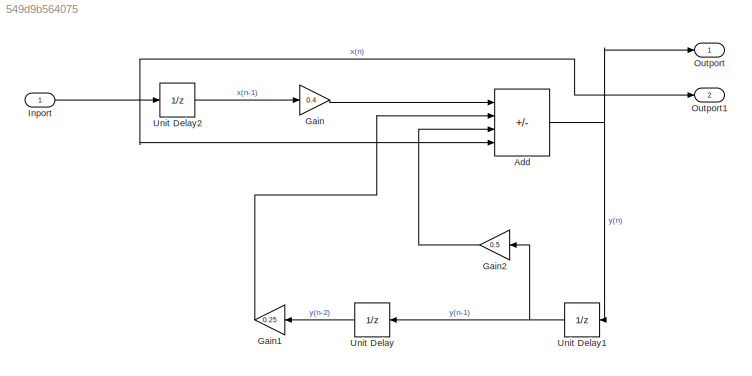
MODEL slx_549d9b564075
KIND model
CONFIG AbsTol = auto
CONFIG EnableMultiTasking = off
CONFIG FixedStep = auto
CONFIG MaxStep = auto
CONFIG MinStep = auto
CONFIG RelTol = 1e-3
CONFIG SampleTimeConstraint = Unconstrained
CONFIG Solver = FixedStepDiscrete
CONFIG SolverName = FixedStepDiscrete
CONFIG StartTime = 0.0
CONFIG StopTime = 10.0
BLOCK [Sum] Add
  IconShape = rectangular
  Inputs = +-++
  Ports = [4, 1]
BLOCK [Gain] Gain
  Gain = 0.4
BLOCK [Gain] Gain1
  Gain = 0.25
  NameLocation = top
BLOCK [Gain] Gain2
  Gain = 0.5
  NameLocation = top
BLOCK [Inport] Inport
  OutDataTypeStr = double
  PortDimensions = 1
  SampleTime = 0
  SamplingMode = Sample based
  SignalType = real
BLOCK [Outport] Outport
  OutDataTypeStr = double
  PortDimensions = 1
  SampleTime = 0
  SamplingMode = Sample based
  SignalType = real
BLOCK [Outport] Outport1
  OutDataTypeStr = double
  Port = 2
  PortDimensions = 1
  SampleTime = 0
  SamplingMode = Sample based
  SignalType = real
BLOCK [UnitDelay] Unit Delay
  HasFrameUpgradeWarning = on
  NameLocation = top
  SampleTime = -1
BLOCK [UnitDelay] Unit Delay1
  HasFrameUpgradeWarning = on
  NameLocation = top
  SampleTime = -1
BLOCK [UnitDelay] Unit Delay2
  HasFrameUpgradeWarning = on
  SampleTime = -1
NET Add:1 -> Outport:1, Unit Delay1:1
LINE Gain1:1 -> Add:2
LINE Gain2:1 -> Add:3
LINE Gain:1 -> Add:1
NET Inport:1 -> Add:4, Outport1:1, Unit Delay2:1
NET Unit Delay1:1 -> Gain2:1, Unit Delay:1
LINE Unit Delay2:1 -> Gain:1
LINE Unit Delay:1 -> Gain1:1
note: NET lines group one-source signal fan-out (src -> all destinations, sorted); 1:1 wires keep LINE
